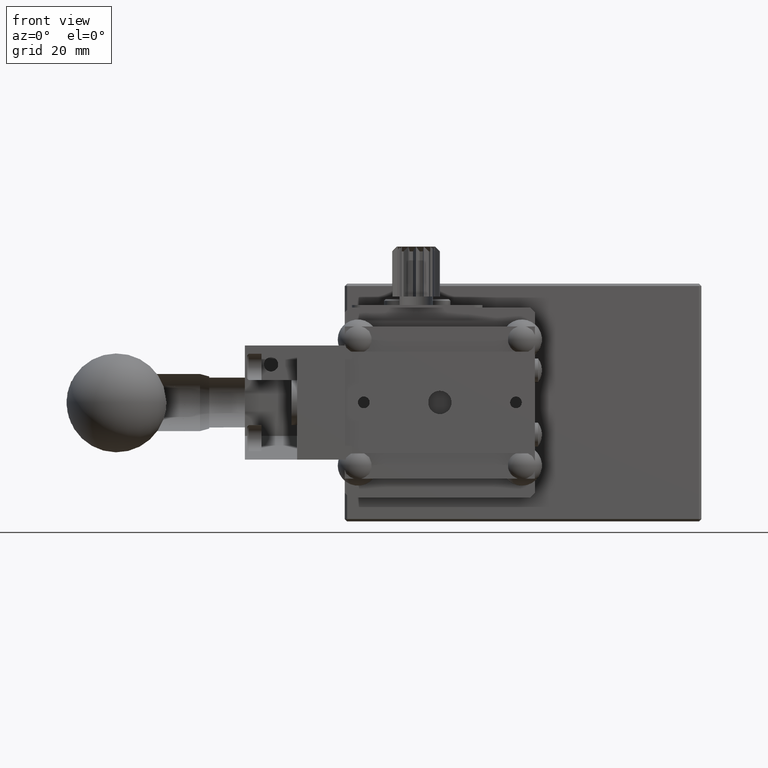
[diagram: clean part render]
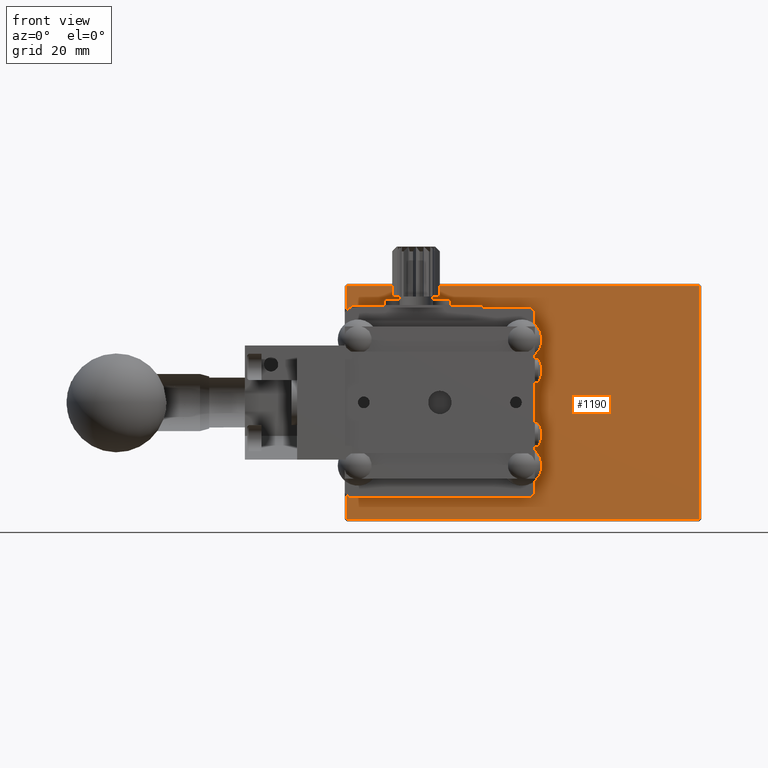
[diagram: same view with one face highlighted and labeled with its STEP entity id]
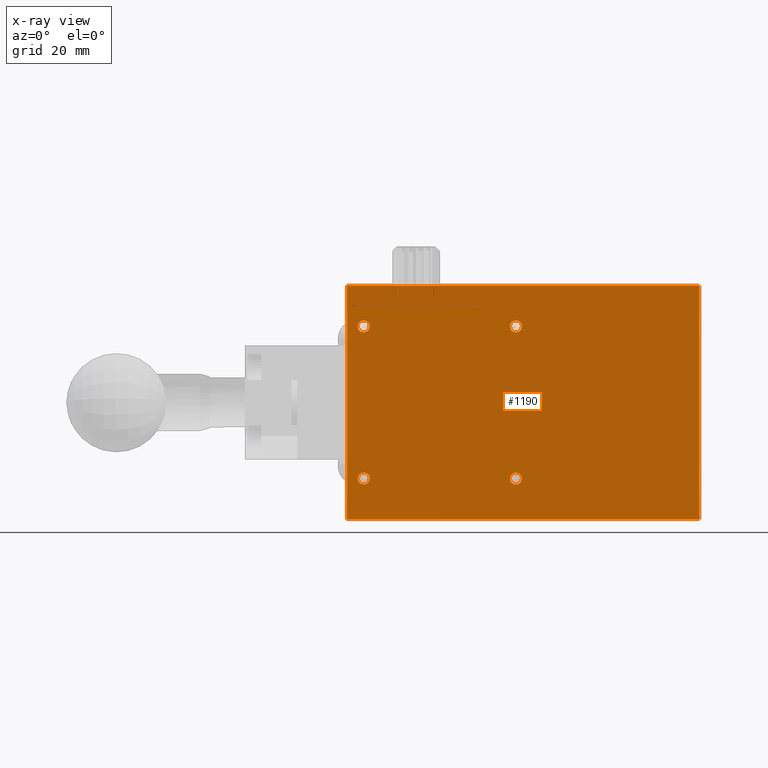
[diagram: x-ray of the same camera — body ghosted, the highlighted face saturated]
A machine part, front view. The second image highlights one B-rep face of the part: STEP entity #1190.
The next image is the same camera in x-ray: the body ghosted, the highlighted face saturated — about 0% of this face is hidden behind the body in this view.
In plain terms, the highlighted planar face has unit normal (0, 1, 0).
Its self-contained STEP definition (entity closure, byte-faithful):
#679 = CARTESIAN_POINT ( 'NONE',  ( 57.00000000000000711, 19.50000000000000000, -16.00000000000000000 ) ) ;
#1190 = ADVANCED_FACE ( 'NONE', ( #38982, #12547, #31574, #16485, #43206 ), #30830, .F. ) ;
#1509 = VECTOR ( 'NONE', #14965, 1000.000000000000000 ) ;
#1789 = EDGE_LOOP ( 'NONE', ( #34599 ) ) ;
#2759 = EDGE_CURVE ( 'NONE', #18711, #5717, #10071, .T. ) ;
#3321 = LINE ( 'NONE', #48908, #1509 ) ;
#3489 = LINE ( 'NONE', #30456, #32763 ) ;
#3986 = EDGE_CURVE ( 'NONE', #30301, #30301, #26300, .T. ) ;
#4577 = DIRECTION ( 'NONE',  ( 0.000000000000000000, -1.000000000000000000, 0.000000000000000000 ) ) ;
#5034 = VERTEX_POINT ( 'NONE', #34737 ) ;
#5717 = VERTEX_POINT ( 'NONE', #14581 ) ;
#6789 = CARTESIAN_POINT ( 'NONE',  ( 25.00000000000000000, 19.50000000000000000, 16.00000000000000000 ) ) ;
#7552 = CARTESIAN_POINT ( 'NONE',  ( 57.00000000000000711, 19.50000000000000000, 16.00000000000000000 ) ) ;
#8272 = CARTESIAN_POINT ( 'NONE',  ( 25.00000000000000000, 19.50000000000000000, -17.25000000000000000 ) ) ;
#8376 = DIRECTION ( 'NONE',  ( 0.000000000000000000, -1.000000000000000000, 0.000000000000000000 ) ) ;
#9019 = EDGE_CURVE ( 'NONE', #15467, #15467, #14933, .T. ) ;
#9371 = AXIS2_PLACEMENT_3D ( 'NONE', #16486, #28602, #31575 ) ;
#10071 = LINE ( 'NONE', #21477, #30217 ) ;
#12547 = FACE_BOUND ( 'NONE', #21113, .T. ) ;
#13570 = AXIS2_PLACEMENT_3D ( 'NONE', #679, #8376, #30884 ) ;
#13875 = VERTEX_POINT ( 'NONE', #35959 ) ;
#14581 = CARTESIAN_POINT ( 'NONE',  ( 95.50000000000001421, 19.50000000000000000, 24.50000000000000000 ) ) ;
#14933 = CIRCLE ( 'NONE', #9371, 1.250000000000001110 ) ;
#14965 = DIRECTION ( 'NONE',  ( 0.000000000000000000, -0.000000000000000000, 1.000000000000000000 ) ) ;
#15467 = VERTEX_POINT ( 'NONE', #8272 ) ;
#16485 = FACE_BOUND ( 'NONE', #48767, .T. ) ;
#16486 = CARTESIAN_POINT ( 'NONE',  ( 25.00000000000000000, 19.50000000000000000, -16.00000000000000000 ) ) ;
#16910 = EDGE_CURVE ( 'NONE', #13875, #45887, #18571, .T. ) ;
#18184 = DIRECTION ( 'NONE',  ( 0.000000000000000000, 0.000000000000000000, -1.000000000000000000 ) ) ;
#18430 = DIRECTION ( 'NONE',  ( 0.000000000000000000, -1.000000000000000000, 0.000000000000000000 ) ) ;
#18477 = EDGE_CURVE ( 'NONE', #5034, #5034, #31726, .T. ) ;
#18571 = LINE ( 'NONE', #25489, #31130 ) ;
#18690 = CARTESIAN_POINT ( 'NONE',  ( 57.00000000000000711, 19.50000000000000000, 14.75000000000000178 ) ) ;
#18711 = VERTEX_POINT ( 'NONE', #45095 ) ;
#20218 = DIRECTION ( 'NONE',  ( 0.000000000000000000, 1.000000000000000000, 0.000000000000000000 ) ) ;
#20280 = VERTEX_POINT ( 'NONE', #35339 ) ;
#21113 = EDGE_LOOP ( 'NONE', ( #41689 ) ) ;
#21477 = CARTESIAN_POINT ( 'NONE',  ( 21.00000000000000000, 19.50000000000000000, 24.50000000000000000 ) ) ;
#22676 = DIRECTION ( 'NONE',  ( 0.000000000000000000, 0.000000000000000000, -1.000000000000000000 ) ) ;
#23013 = EDGE_LOOP ( 'NONE', ( #24071 ) ) ;
#23603 = EDGE_CURVE ( 'NONE', #5717, #13875, #3489, .T. ) ;
#24071 = ORIENTED_EDGE ( 'NONE', *, *, #18477, .F. ) ;
#24133 = CARTESIAN_POINT ( 'NONE',  ( 21.00000000000000000, 19.50000000000000000, 25.00000000000000000 ) ) ;
#24812 = EDGE_LOOP ( 'NONE', ( #47499, #37500, #31882, #26521 ) ) ;
#25489 = CARTESIAN_POINT ( 'NONE',  ( 21.00000000000000000, 19.50000000000000000, -24.50000000000000000 ) ) ;
#26300 = CIRCLE ( 'NONE', #48470, 1.249999999999999334 ) ;
#26521 = ORIENTED_EDGE ( 'NONE', *, *, #2759, .F. ) ;
#28465 = CARTESIAN_POINT ( 'NONE',  ( 21.50000000000000000, 19.50000000000000000, -24.50000000000000000 ) ) ;
#28602 = DIRECTION ( 'NONE',  ( 0.000000000000000000, -1.000000000000000000, 0.000000000000000000 ) ) ;
#29374 = DIRECTION ( 'NONE',  ( 1.000000000000000000, 0.000000000000000000, -0.000000000000000000 ) ) ;
#30217 = VECTOR ( 'NONE', #29374, 1000.000000000000000 ) ;
#30301 = VERTEX_POINT ( 'NONE', #18690 ) ;
#30456 = CARTESIAN_POINT ( 'NONE',  ( 95.50000000000000000, 19.50000000000000000, 25.00000000000000000 ) ) ;
#30830 = PLANE ( 'NONE',  #39867 ) ;
#30884 = DIRECTION ( 'NONE',  ( 0.000000000000000000, 0.000000000000000000, -1.000000000000000000 ) ) ;
#31130 = VECTOR ( 'NONE', #48295, 1000.000000000000000 ) ;
#31574 = FACE_BOUND ( 'NONE', #23013, .T. ) ;
#31575 = DIRECTION ( 'NONE',  ( 0.000000000000000000, 0.000000000000000000, -1.000000000000000000 ) ) ;
#31726 = CIRCLE ( 'NONE', #13570, 1.250000000000001110 ) ;
#31882 = ORIENTED_EDGE ( 'NONE', *, *, #23603, .F. ) ;
#32763 = VECTOR ( 'NONE', #40858, 1000.000000000000000 ) ;
#34599 = ORIENTED_EDGE ( 'NONE', *, *, #3986, .F. ) ;
#34737 = CARTESIAN_POINT ( 'NONE',  ( 57.00000000000000711, 19.50000000000000000, -17.25000000000000000 ) ) ;
#35273 = DIRECTION ( 'NONE',  ( 0.000000000000000000, -0.000000000000000000, 1.000000000000000000 ) ) ;
#35339 = CARTESIAN_POINT ( 'NONE',  ( 25.00000000000000000, 19.50000000000000000, 14.75000000000000178 ) ) ;
#35959 = CARTESIAN_POINT ( 'NONE',  ( 95.50000000000001421, 19.50000000000000000, -24.50000000000000000 ) ) ;
#36646 = CIRCLE ( 'NONE', #39003, 1.249999999999999334 ) ;
#37500 = ORIENTED_EDGE ( 'NONE', *, *, #16910, .F. ) ;
#38982 = FACE_OUTER_BOUND ( 'NONE', #24812, .T. ) ;
#39003 = AXIS2_PLACEMENT_3D ( 'NONE', #6789, #18430, #18184 ) ;
#39867 = AXIS2_PLACEMENT_3D ( 'NONE', #24133, #20218, #35273 ) ;
#40858 = DIRECTION ( 'NONE',  ( -0.000000000000000000, 0.000000000000000000, -1.000000000000000000 ) ) ;
#41689 = ORIENTED_EDGE ( 'NONE', *, *, #45752, .F. ) ;
#43206 = FACE_BOUND ( 'NONE', #1789, .T. ) ;
#45095 = CARTESIAN_POINT ( 'NONE',  ( 21.49999999999999645, 19.50000000000000000, 24.50000000000000000 ) ) ;
#45752 = EDGE_CURVE ( 'NONE', #20280, #20280, #36646, .T. ) ;
#45887 = VERTEX_POINT ( 'NONE', #28465 ) ;
#46715 = EDGE_CURVE ( 'NONE', #45887, #18711, #3321, .T. ) ;
#47499 = ORIENTED_EDGE ( 'NONE', *, *, #46715, .F. ) ;
#48295 = DIRECTION ( 'NONE',  ( -1.000000000000000000, -0.000000000000000000, 0.000000000000000000 ) ) ;
#48404 = ORIENTED_EDGE ( 'NONE', *, *, #9019, .F. ) ;
#48470 = AXIS2_PLACEMENT_3D ( 'NONE', #7552, #4577, #22676 ) ;
#48767 = EDGE_LOOP ( 'NONE', ( #48404 ) ) ;
#48908 = CARTESIAN_POINT ( 'NONE',  ( 21.50000000000000000, 19.50000000000000000, 25.00000000000000000 ) ) ;